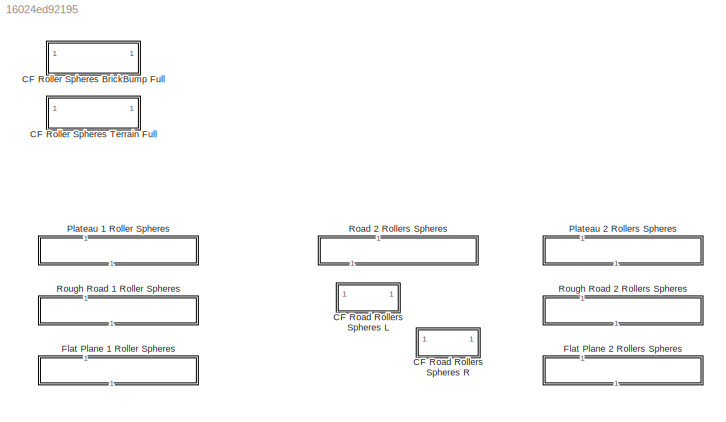
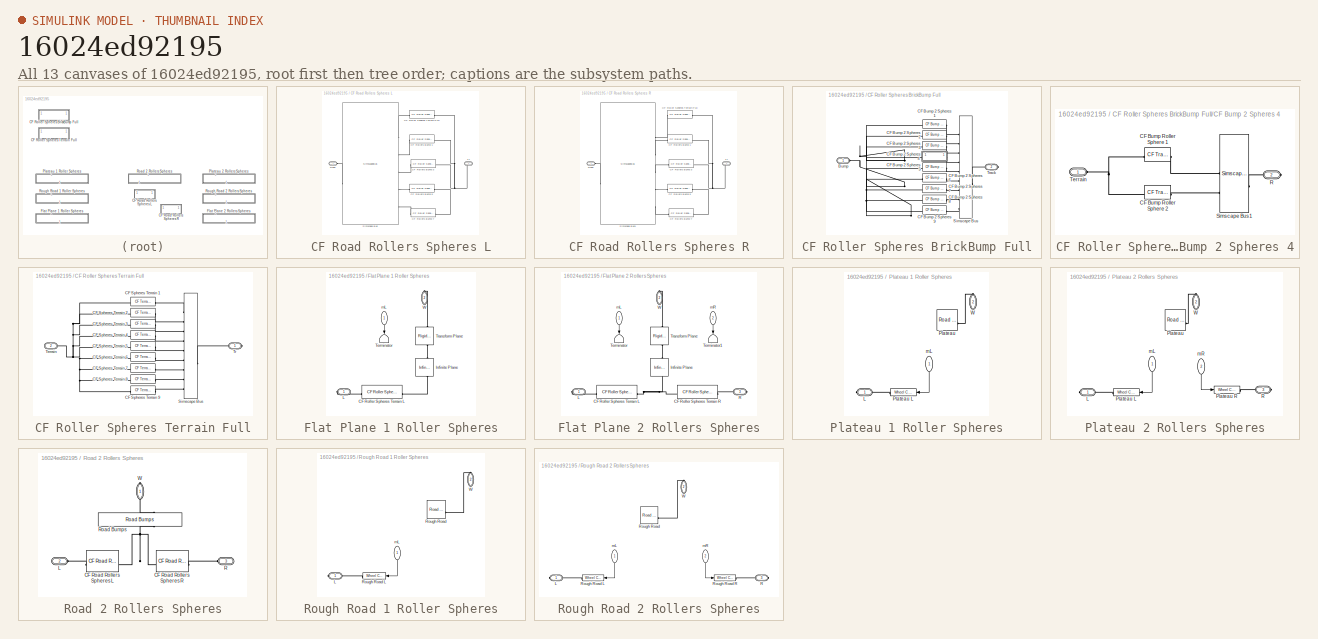
[diagram: thumbnail index - all 13 canvases of the model, root first then tree order]
MODEL slx_16024ed92195
KIND library
CONFIG SolverName = VariableStepAuto
BLOCK [SubSystem] CF Road Rollers Spheres L
BLOCK [Reference] CF Road Rollers Spheres L/CF Roller Spheres Terrain Full  REF=$bdroot/CF Roller Spheres Terrain Full
  SourceBlock = $bdroot/CF Roller Spheres Terrain Full
  SourceType = Contact Forces, All Rollers (Spheres) and Terrain)
BLOCK [Reference] CF Road Rollers Spheres L/CF Rollers Bump 1  REF=$bdroot/CF Roller Spheres BrickBump Full
  SourceBlock = $bdroot/CF Roller Spheres BrickBump Full
  SourceType = Contact Forces, Full Track to Bump
BLOCK [Reference] CF Road Rollers Spheres L/CF Rollers Bump 3  REF=$bdroot/CF Roller Spheres BrickBump Full
  SourceBlock = $bdroot/CF Roller Spheres BrickBump Full
  SourceType = Contact Forces, Full Track to Bump
BLOCK [Reference] CF Road Rollers Spheres L/CF Rollers Bump 5  REF=$bdroot/CF Roller Spheres BrickBump Full
  SourceBlock = $bdroot/CF Roller Spheres BrickBump Full
  SourceType = Contact Forces, Full Track to Bump
BLOCK [Reference] CF Road Rollers Spheres L/CF Rollers Bump 7  REF=$bdroot/CF Roller Spheres BrickBump Full
  SourceBlock = $bdroot/CF Roller Spheres BrickBump Full
  SourceType = Contact Forces, Full Track to Bump
BLOCK [PMIOPort] CF Road Rollers Spheres L/Road
  Side = Left
BLOCK [SimscapeBus] CF Road Rollers Spheres L/Simscape Bus
  ConnectionType = Bus: CBO_Road8
  HierarchyStrings = Road;B1;B3;B5;B7
  NameLocation = top
BLOCK [PMIOPort] CF Road Rollers Spheres L/Tr
  Port = 2
  Side = Right
BLOCK [SubSystem] CF Road Rollers Spheres R
BLOCK [Reference] CF Road Rollers Spheres R/CF Roller Spheres Terrain Full  REF=$bdroot/CF Roller Spheres Terrain Full
  SourceBlock = $bdroot/CF Roller Spheres Terrain Full
  SourceType = Contact Forces, All Rollers (Spheres) and Terrain)
BLOCK [Reference] CF Road Rollers Spheres R/CF Rollers Bump 1  REF=$bdroot/CF Roller Spheres BrickBump Full
  SourceBlock = $bdroot/CF Roller Spheres BrickBump Full
  SourceType = Contact Forces, Full Track to Bump
BLOCK [Reference] CF Road Rollers Spheres R/CF Rollers Bump 3  REF=$bdroot/CF Roller Spheres BrickBump Full
  SourceBlock = $bdroot/CF Roller Spheres BrickBump Full
  SourceType = Contact Forces, Full Track to Bump
BLOCK [Reference] CF Road Rollers Spheres R/CF Rollers Bump 5  REF=$bdroot/CF Roller Spheres BrickBump Full
  SourceBlock = $bdroot/CF Roller Spheres BrickBump Full
  SourceType = Contact Forces, Full Track to Bump
BLOCK [Reference] CF Road Rollers Spheres R/CF Rollers Bump 7  REF=$bdroot/CF Roller Spheres BrickBump Full
  SourceBlock = $bdroot/CF Roller Spheres BrickBump Full
  SourceType = Contact Forces, Full Track to Bump
BLOCK [PMIOPort] CF Road Rollers Spheres R/Road
  Side = Left
BLOCK [SimscapeBus] CF Road Rollers Spheres R/Simscape Bus1
  ConnectionType = Bus: CBO_Road8
  HierarchyStrings = Road;B2;B4;B6;B8
  NameLocation = top
BLOCK [PMIOPort] CF Road Rollers Spheres R/Tr
  Port = 2
  Side = Right
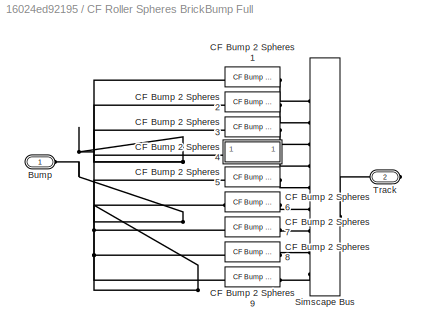
BLOCK [SubSystem] CF Roller Spheres BrickBump Full
BLOCK [PMIOPort] CF Roller Spheres BrickBump Full/Bump
  Side = Left
BLOCK [Reference] CF Roller Spheres BrickBump Full/CF Bump 2 Spheres 1  REF=sm_rollerV_lib_terrain_contact_belem/CF Bump 2 Spheres
  NameLocation = left
  SourceBlock = sm_rollerV_lib_terrain_contact_belem/CF Bump 2 Spheres
  SourceType = Contact Force, Two Spheres to Bump
BLOCK [Reference] CF Roller Spheres BrickBump Full/CF Bump 2 Spheres 2  REF=sm_rollerV_lib_terrain_contact_belem/CF Bump 2 Spheres
  NameLocation = left
  SourceBlock = sm_rollerV_lib_terrain_contact_belem/CF Bump 2 Spheres
  SourceType = Contact Force, Two Spheres to Bump
BLOCK [Reference] CF Roller Spheres BrickBump Full/CF Bump 2 Spheres 3  REF=sm_rollerV_lib_terrain_contact_belem/CF Bump 2 Spheres
  NameLocation = left
  SourceBlock = sm_rollerV_lib_terrain_contact_belem/CF Bump 2 Spheres
  SourceType = Contact Force, Two Spheres to Bump
BLOCK [SubSystem] CF Roller Spheres BrickBump Full/CF Bump 2 Spheres 4
  NameLocation = left
BLOCK [Reference] CF Roller Spheres BrickBump Full/CF Bump 2 Spheres 4/CF Bump Roller Sphere 1   REF=sm_trackV_lib_terrain_contact_elem/CF Track BrickBump
  SourceBlock = sm_trackV_lib_terrain_contact_elem/CF Track BrickBump
  SourceType = Contact Force, Track Segment to Bump
BLOCK [Reference] CF Roller Spheres BrickBump Full/CF Bump 2 Spheres 4/CF Bump Roller Sphere 2  REF=sm_trackV_lib_terrain_contact_elem/CF Track BrickBump
  SourceBlock = sm_trackV_lib_terrain_contact_elem/CF Track BrickBump
  SourceType = Contact Force, Track Segment to Bump
BLOCK [PMIOPort] CF Roller Spheres BrickBump Full/CF Bump 2 Spheres 4/R
  Port = 2
  Side = Right
BLOCK [SimscapeBus] CF Roller Spheres BrickBump Full/CF Bump 2 Spheres 4/Simscape Bus1
  HierarchyStrings = S1;S2
BLOCK [PMIOPort] CF Roller Spheres BrickBump Full/CF Bump 2 Spheres 4/Terrain
  Side = Left
BLOCK [Reference] CF Roller Spheres BrickBump Full/CF Bump 2 Spheres 5  REF=$bdroot/CF Roller Spheres BrickBump Full/CF Bump 2 Spheres 4
  NameLocation = left
  SourceBlock = $bdroot/CF Roller Spheres BrickBump Full/CF Bump 2 Spheres 4
BLOCK [Reference] CF Roller Spheres BrickBump Full/CF Bump 2 Spheres 6  REF=$bdroot/CF Roller Spheres BrickBump Full/CF Bump 2 Spheres 4
  NameLocation = left
  SourceBlock = $bdroot/CF Roller Spheres BrickBump Full/CF Bump 2 Spheres 4
BLOCK [Reference] CF Roller Spheres BrickBump Full/CF Bump 2 Spheres 7  REF=$bdroot/CF Roller Spheres BrickBump Full/CF Bump 2 Spheres 4
  NameLocation = left
  SourceBlock = $bdroot/CF Roller Spheres BrickBump Full/CF Bump 2 Spheres 4
BLOCK [Reference] CF Roller Spheres BrickBump Full/CF Bump 2 Spheres 8  REF=$bdroot/CF Roller Spheres BrickBump Full/CF Bump 2 Spheres 4
  NameLocation = left
  SourceBlock = $bdroot/CF Roller Spheres BrickBump Full/CF Bump 2 Spheres 4
BLOCK [Reference] CF Roller Spheres BrickBump Full/CF Bump 2 Spheres 9  REF=$bdroot/CF Roller Spheres BrickBump Full/CF Bump 2 Spheres 4
  NameLocation = left
  SourceBlock = $bdroot/CF Roller Spheres BrickBump Full/CF Bump 2 Spheres 4
BLOCK [SimscapeBus] CF Roller Spheres BrickBump Full/Simscape Bus
  HierarchyStrings = L1;L2;L3;L4;L5;L6;L7;L8;L9
BLOCK [PMIOPort] CF Roller Spheres BrickBump Full/Track
  NameLocation = top
  Port = 2
  Side = Right
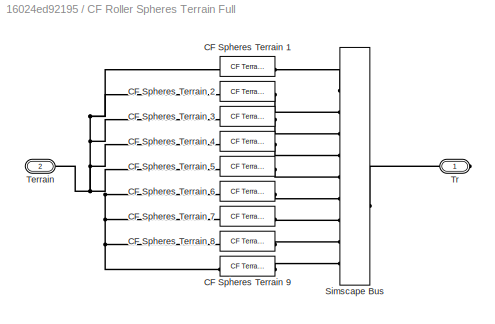
BLOCK [SubSystem] CF Roller Spheres Terrain Full
BLOCK [Reference] CF Roller Spheres Terrain Full/CF Spheres Terrain 1  REF=sm_rollerV_lib_terrain_contact_belem/CF Terrain 2 Spheres
  NameLocation = left
  SourceBlock = sm_rollerV_lib_terrain_contact_belem/CF Terrain 2 Spheres
  SourceType = Contact Force, Two Spheres to Ground
BLOCK [Reference] CF Roller Spheres Terrain Full/CF Spheres Terrain 2  REF=sm_rollerV_lib_terrain_contact_belem/CF Terrain 2 Spheres
  NameLocation = left
  SourceBlock = sm_rollerV_lib_terrain_contact_belem/CF Terrain 2 Spheres
  SourceType = Contact Force, Two Spheres to Ground
BLOCK [Reference] CF Roller Spheres Terrain Full/CF Spheres Terrain 3  REF=sm_rollerV_lib_terrain_contact_belem/CF Terrain 2 Spheres
  NameLocation = left
  SourceBlock = sm_rollerV_lib_terrain_contact_belem/CF Terrain 2 Spheres
  SourceType = Contact Force, Two Spheres to Ground
BLOCK [Reference] CF Roller Spheres Terrain Full/CF Spheres Terrain 4  REF=sm_rollerV_lib_terrain_contact_belem/CF Terrain 2 Spheres
  NameLocation = left
  SourceBlock = sm_rollerV_lib_terrain_contact_belem/CF Terrain 2 Spheres
  SourceType = Contact Force, Two Spheres to Ground
BLOCK [Reference] CF Roller Spheres Terrain Full/CF Spheres Terrain 5  REF=sm_rollerV_lib_terrain_contact_belem/CF Terrain 2 Spheres
  NameLocation = left
  SourceBlock = sm_rollerV_lib_terrain_contact_belem/CF Terrain 2 Spheres
  SourceType = Contact Force, Two Spheres to Ground
BLOCK [Reference] CF Roller Spheres Terrain Full/CF Spheres Terrain 6  REF=sm_rollerV_lib_terrain_contact_belem/CF Terrain 2 Spheres
  NameLocation = left
  SourceBlock = sm_rollerV_lib_terrain_contact_belem/CF Terrain 2 Spheres
  SourceType = Contact Force, Two Spheres to Ground
BLOCK [Reference] CF Roller Spheres Terrain Full/CF Spheres Terrain 7  REF=sm_rollerV_lib_terrain_contact_belem/CF Terrain 2 Spheres
  NameLocation = left
  SourceBlock = sm_rollerV_lib_terrain_contact_belem/CF Terrain 2 Spheres
  SourceType = Contact Force, Two Spheres to Ground
BLOCK [Reference] CF Roller Spheres Terrain Full/CF Spheres Terrain 8  REF=sm_rollerV_lib_terrain_contact_belem/CF Terrain 2 Spheres
  NameLocation = left
  SourceBlock = sm_rollerV_lib_terrain_contact_belem/CF Terrain 2 Spheres
  SourceType = Contact Force, Two Spheres to Ground
BLOCK [Reference] CF Roller Spheres Terrain Full/CF Spheres Terrain 9  REF=sm_rollerV_lib_terrain_contact_belem/CF Terrain 2 Spheres
  NameLocation = left
  SourceBlock = sm_rollerV_lib_terrain_contact_belem/CF Terrain 2 Spheres
  SourceType = Contact Force, Two Spheres to Ground
BLOCK [SimscapeBus] CF Roller Spheres Terrain Full/Simscape Bus
  HierarchyStrings = L1;L2;L3;L4;L5;L6;L7;L8;L9
BLOCK [PMIOPort] CF Roller Spheres Terrain Full/Terrain
  Port = 2
  Side = Left
BLOCK [PMIOPort] CF Roller Spheres Terrain Full/Tr
  Side = Right
BLOCK [SubSystem] Flat Plane 1 Roller Spheres
  NameLocation = right
BLOCK [Reference] Flat Plane 1 Roller Spheres/CF Roller Spheres Terrain L  REF=$bdroot/CF Roller Spheres Terrain Full
  SourceBlock = $bdroot/CF Roller Spheres Terrain Full
  SourceType = Contact Forces, All Rollers (Spheres) and Terrain)
BLOCK [Reference] Flat Plane 1 Roller Spheres/Infinite Plane  REF=sm_lib/Curves and Surfaces/Infinite Plane
  NameLocation = right
  SourceBlock = sm_lib/Curves and Surfaces/Infinite Plane
  SourceType = Infinite Plane
BLOCK [PMIOPort] Flat Plane 1 Roller Spheres/L
  Side = Right
BLOCK [Terminator] Flat Plane 1 Roller Spheres/Terminator
  NameLocation = left
BLOCK [Reference] Flat Plane 1 Roller Spheres/Transform Plane  REF=sm_lib/Frames and
Transforms/Rigid
Transform
  NameLocation = right
  SourceBlock = sm_lib/Frames and\nTransforms/Rigid\nTransform
  SourceType = Rigid\nTransform
BLOCK [PMIOPort] Flat Plane 1 Roller Spheres/W
  NameLocation = left
  Port = 2
  Side = Right
BLOCK [Inport] Flat Plane 1 Roller Spheres/mL
  NameLocation = left
BLOCK [SubSystem] Flat Plane 2 Rollers Spheres
  NameLocation = right
BLOCK [Reference] Flat Plane 2 Rollers Spheres/CF Roller Spheres Terrain L  REF=$bdroot/CF Roller Spheres Terrain Full
  SourceBlock = $bdroot/CF Roller Spheres Terrain Full
  SourceType = Contact Forces, All Rollers (Spheres) and Terrain)
BLOCK [Reference] Flat Plane 2 Rollers Spheres/CF Roller Spheres Terrain R  REF=$bdroot/CF Roller Spheres Terrain Full
  SourceBlock = $bdroot/CF Roller Spheres Terrain Full
  SourceType = Contact Forces, All Rollers (Spheres) and Terrain)
BLOCK [Reference] Flat Plane 2 Rollers Spheres/Infinite Plane  REF=sm_lib/Curves and Surfaces/Infinite Plane
  NameLocation = right
  SourceBlock = sm_lib/Curves and Surfaces/Infinite Plane
  SourceType = Infinite Plane
BLOCK [PMIOPort] Flat Plane 2 Rollers Spheres/L
  Side = Right
BLOCK [PMIOPort] Flat Plane 2 Rollers Spheres/R
  Port = 3
  Side = Right
BLOCK [Terminator] Flat Plane 2 Rollers Spheres/Terminator
  NameLocation = left
BLOCK [Terminator] Flat Plane 2 Rollers Spheres/Terminator1
  NameLocation = left
BLOCK [Reference] Flat Plane 2 Rollers Spheres/Transform Plane  REF=sm_lib/Frames and
Transforms/Rigid
Transform
  NameLocation = right
  SourceBlock = sm_lib/Frames and\nTransforms/Rigid\nTransform
  SourceType = Rigid\nTransform
BLOCK [PMIOPort] Flat Plane 2 Rollers Spheres/W
  NameLocation = left
  Port = 2
  Side = Right
BLOCK [Inport] Flat Plane 2 Rollers Spheres/mL
  NameLocation = left
BLOCK [Inport] Flat Plane 2 Rollers Spheres/mR
  NameLocation = left
  Port = 2
BLOCK [SubSystem] Plateau 1 Roller Spheres
  NameLocation = right
BLOCK [PMIOPort] Plateau 1 Roller Spheres/L
  Side = Right
BLOCK [Reference] Plateau 1 Roller Spheres/Plateau  REF=sm_excv_scene_lib/Road Profile and Grid  (lib defined in slx_1cf3237a0358)
  LibrarySourceBlock = sm_excv_uneven_road_lib/Plateau
  SourceBlock = sm_excv_scene_lib/Road Profile and Grid
  SourceType = Display Wheel Paths and Grid
BLOCK [Reference] Plateau 1 Roller Spheres/Plateau L  REF=sm_rollerV_lib_terrain_contact_belem/Wheel Center to Patch 2x
Roller Set
  LibrarySourceBlock = sm_excv_uneven_road_lib/Rollers Rough Road1
  SourceBlock = sm_rollerV_lib_terrain_contact_belem/Wheel Center to Patch 2x\nRoller Set
  SourceType = Wheel Center to Patch Height and Pitch, All Rollers
BLOCK [PMIOPort] Plateau 1 Roller Spheres/W
  NameLocation = left
  Port = 2
  Side = Right
BLOCK [Inport] Plateau 1 Roller Spheres/mL
  NameLocation = left
BLOCK [SubSystem] Plateau 2 Rollers Spheres
  NameLocation = right
BLOCK [PMIOPort] Plateau 2 Rollers Spheres/L
  Side = Right
BLOCK [Reference] Plateau 2 Rollers Spheres/Plateau  REF=sm_excv_scene_lib/Road Profile and Grid  (lib defined in slx_1cf3237a0358)
  LibrarySourceBlock = sm_excv_uneven_road_lib/Plateau
  SourceBlock = sm_excv_scene_lib/Road Profile and Grid
  SourceType = Display Wheel Paths and Grid
BLOCK [Reference] Plateau 2 Rollers Spheres/Plateau L  REF=sm_rollerV_lib_terrain_contact_belem/Wheel Center to Patch 2x
Roller Set
  LibrarySourceBlock = sm_excv_uneven_road_lib/Rollers Rough Road1
  SourceBlock = sm_rollerV_lib_terrain_contact_belem/Wheel Center to Patch 2x\nRoller Set
  SourceType = Wheel Center to Patch Height and Pitch, All Rollers
BLOCK [Reference] Plateau 2 Rollers Spheres/Plateau R  REF=sm_rollerV_lib_terrain_contact_belem/Wheel Center to Patch 2x
Roller Set
  LibrarySourceBlock = sm_excv_uneven_road_lib/Rollers Rough Road1
  SourceBlock = sm_rollerV_lib_terrain_contact_belem/Wheel Center to Patch 2x\nRoller Set
  SourceType = Wheel Center to Patch Height and Pitch, All Rollers
BLOCK [PMIOPort] Plateau 2 Rollers Spheres/R
  Port = 3
  Side = Right
BLOCK [PMIOPort] Plateau 2 Rollers Spheres/W
  NameLocation = left
  Port = 2
  Side = Right
BLOCK [Inport] Plateau 2 Rollers Spheres/mL
  NameLocation = left
BLOCK [Inport] Plateau 2 Rollers Spheres/mR
  NameLocation = left
  Port = 2
BLOCK [SubSystem] Road 2 Rollers Spheres
  NameLocation = right
BLOCK [Reference] Road 2 Rollers Spheres/CF Road Rollers Spheres L  REF=$bdroot/CF Road Rollers Spheres L
  SourceBlock = $bdroot/CF Road Rollers Spheres L
  SourceType = SubSystem
BLOCK [Reference] Road 2 Rollers Spheres/CF Road Rollers Spheres R  REF=$bdroot/CF Road Rollers Spheres R
  SourceBlock = $bdroot/CF Road Rollers Spheres R
  SourceType = SubSystem
BLOCK [PMIOPort] Road 2 Rollers Spheres/L
  Port = 2
  Side = Left
BLOCK [PMIOPort] Road 2 Rollers Spheres/R
  Port = 3
  Side = Left
BLOCK [Reference] Road 2 Rollers Spheres/Road Bumps  REF=sm_excv_scene_lib/Road  (lib defined in slx_1cf3237a0358)
Bumps
  NameLocation = right
  SourceBlock = sm_excv_scene_lib/Road\nBumps
BLOCK [PMIOPort] Road 2 Rollers Spheres/W
  NameLocation = right
  Side = Right
BLOCK [SubSystem] Rough Road 1 Roller Spheres
  NameLocation = right
BLOCK [PMIOPort] Rough Road 1 Roller Spheres/L
  Side = Right
BLOCK [Reference] Rough Road 1 Roller Spheres/Rough Road  REF=sm_excv_scene_lib/Road Profile and Grid  (lib defined in slx_1cf3237a0358)
  SourceBlock = sm_excv_scene_lib/Road Profile and Grid
  SourceType = Display Wheel Paths and Grid
BLOCK [Reference] Rough Road 1 Roller Spheres/Rough Road L  REF=sm_rollerV_lib_terrain_contact_belem/Wheel Center to Patch 2x
Roller Set
  LibrarySourceBlock = sm_excv_uneven_road_lib/Rollers Rough Road1
  SourceBlock = sm_rollerV_lib_terrain_contact_belem/Wheel Center to Patch 2x\nRoller Set
  SourceType = Wheel Center to Patch Height and Pitch, All Rollers
BLOCK [PMIOPort] Rough Road 1 Roller Spheres/W
  NameLocation = left
  Port = 2
  Side = Right
BLOCK [Inport] Rough Road 1 Roller Spheres/mL
  NameLocation = left
BLOCK [SubSystem] Rough Road 2 Rollers Spheres
  NameLocation = right
BLOCK [PMIOPort] Rough Road 2 Rollers Spheres/L
  Side = Right
BLOCK [PMIOPort] Rough Road 2 Rollers Spheres/R
  Port = 3
  Side = Right
BLOCK [Reference] Rough Road 2 Rollers Spheres/Rough Road  REF=sm_excv_scene_lib/Road Profile and Grid  (lib defined in slx_1cf3237a0358)
  SourceBlock = sm_excv_scene_lib/Road Profile and Grid
  SourceType = Display Wheel Paths and Grid
BLOCK [Reference] Rough Road 2 Rollers Spheres/Rough Road L  REF=sm_rollerV_lib_terrain_contact_belem/Wheel Center to Patch 2x
Roller Set
  LibrarySourceBlock = sm_excv_uneven_road_lib/Rollers Rough Road1
  SourceBlock = sm_rollerV_lib_terrain_contact_belem/Wheel Center to Patch 2x\nRoller Set
  SourceType = Wheel Center to Patch Height and Pitch, All Rollers
BLOCK [Reference] Rough Road 2 Rollers Spheres/Rough Road R  REF=sm_rollerV_lib_terrain_contact_belem/Wheel Center to Patch 2x
Roller Set
  LibrarySourceBlock = sm_excv_uneven_road_lib/Rollers Rough Road1
  SourceBlock = sm_rollerV_lib_terrain_contact_belem/Wheel Center to Patch 2x\nRoller Set
  SourceType = Wheel Center to Patch Height and Pitch, All Rollers
BLOCK [PMIOPort] Rough Road 2 Rollers Spheres/W
  NameLocation = left
  Port = 2
  Side = Right
BLOCK [Inport] Rough Road 2 Rollers Spheres/mL
  NameLocation = left
BLOCK [Inport] Rough Road 2 Rollers Spheres/mR
  NameLocation = left
  Port = 2
LINE Flat Plane 1 Roller Spheres/mL:1 -> Flat Plane 1 Roller Spheres/Terminator:1
LINE Flat Plane 2 Rollers Spheres/mL:1 -> Flat Plane 2 Rollers Spheres/Terminator:1
LINE Flat Plane 2 Rollers Spheres/mR:1 -> Flat Plane 2 Rollers Spheres/Terminator1:1
LINE Plateau 1 Roller Spheres/mL:1 -> Plateau 1 Roller Spheres/Plateau L:1
LINE Plateau 2 Rollers Spheres/mL:1 -> Plateau 2 Rollers Spheres/Plateau L:1
LINE Plateau 2 Rollers Spheres/mR:1 -> Plateau 2 Rollers Spheres/Plateau R:1
LINE Rough Road 1 Roller Spheres/mL:1 -> Rough Road 1 Roller Spheres/Rough Road L:1
LINE Rough Road 2 Rollers Spheres/mL:1 -> Rough Road 2 Rollers Spheres/Rough Road L:1
LINE Rough Road 2 Rollers Spheres/mR:1 -> Rough Road 2 Rollers Spheres/Rough Road R:1
PLINE CF Road Rollers Spheres L/CF Roller Spheres Terrain Full:LConn1 -- CF Road Rollers Spheres L/Simscape Bus:LConn1
PNET net1: CF Road Rollers Spheres L/CF Roller Spheres Terrain Full:RConn1 -- CF Road Rollers Spheres L/CF Rollers Bump 1:RConn1 -- CF Road Rollers Spheres L/CF Rollers Bump 3:RConn1 -- CF Road Rollers Spheres L/CF Rollers Bump 5:RConn1 -- CF Road Rollers Spheres L/CF Rollers Bump 7:RConn1 -- CF Road Rollers Spheres L/Tr:RConn1
PLINE CF Road Rollers Spheres L/CF Rollers Bump 1:LConn1 -- CF Road Rollers Spheres L/Simscape Bus:LConn2
PLINE CF Road Rollers Spheres L/CF Rollers Bump 3:LConn1 -- CF Road Rollers Spheres L/Simscape Bus:LConn3
PLINE CF Road Rollers Spheres L/CF Rollers Bump 5:LConn1 -- CF Road Rollers Spheres L/Simscape Bus:LConn4
PLINE CF Road Rollers Spheres L/CF Rollers Bump 7:LConn1 -- CF Road Rollers Spheres L/Simscape Bus:LConn5
PLINE CF Road Rollers Spheres L/Road:RConn1 -- CF Road Rollers Spheres L/Simscape Bus:RConn1
PLINE CF Road Rollers Spheres R/CF Roller Spheres Terrain Full:LConn1 -- CF Road Rollers Spheres R/Simscape Bus1:LConn1
PNET net2: CF Road Rollers Spheres R/CF Roller Spheres Terrain Full:RConn1 -- CF Road Rollers Spheres R/CF Rollers Bump 1:RConn1 -- CF Road Rollers Spheres R/CF Rollers Bump 3:RConn1 -- CF Road Rollers Spheres R/CF Rollers Bump 5:RConn1 -- CF Road Rollers Spheres R/CF Rollers Bump 7:RConn1 -- CF Road Rollers Spheres R/Tr:RConn1
PLINE CF Road Rollers Spheres R/CF Rollers Bump 1:LConn1 -- CF Road Rollers Spheres R/Simscape Bus1:LConn2
PLINE CF Road Rollers Spheres R/CF Rollers Bump 3:LConn1 -- CF Road Rollers Spheres R/Simscape Bus1:LConn3
PLINE CF Road Rollers Spheres R/CF Rollers Bump 5:LConn1 -- CF Road Rollers Spheres R/Simscape Bus1:LConn4
PLINE CF Road Rollers Spheres R/CF Rollers Bump 7:LConn1 -- CF Road Rollers Spheres R/Simscape Bus1:LConn5
PLINE CF Road Rollers Spheres R/Road:RConn1 -- CF Road Rollers Spheres R/Simscape Bus1:RConn1
PNET net3: CF Roller Spheres BrickBump Full/Bump:RConn1 -- CF Roller Spheres BrickBump Full/CF Bump 2 Spheres 1:LConn1 -- CF Roller Spheres BrickBump Full/CF Bump 2 Spheres 2:LConn1 -- CF Roller Spheres BrickBump Full/CF Bump 2 Spheres 3:LConn1 -- CF Roller Spheres BrickBump Full/CF Bump 2 Spheres 4:LConn1 -- CF Roller Spheres BrickBump Full/CF Bump 2 Spheres 5:LConn1 -- CF Roller Spheres BrickBump Full/CF Bump 2 Spheres 6:LConn1 -- CF Roller Spheres BrickBump Full/CF Bump 2 Spheres 7:LConn1 -- CF Roller Spheres BrickBump Full/CF Bump 2 Spheres 8:LConn1 -- CF Roller Spheres BrickBump Full/CF Bump 2 Spheres 9:LConn1
PLINE CF Roller Spheres BrickBump Full/CF Bump 2 Spheres 1:RConn1 -- CF Roller Spheres BrickBump Full/Simscape Bus:LConn1
PLINE CF Roller Spheres BrickBump Full/CF Bump 2 Spheres 2:RConn1 -- CF Roller Spheres BrickBump Full/Simscape Bus:LConn2
PLINE CF Roller Spheres BrickBump Full/CF Bump 2 Spheres 3:RConn1 -- CF Roller Spheres BrickBump Full/Simscape Bus:LConn3
PNET net4: CF Roller Spheres BrickBump Full/CF Bump 2 Spheres 4/CF Bump Roller Sphere 1 :LConn1 -- CF Roller Spheres BrickBump Full/CF Bump 2 Spheres 4/CF Bump Roller Sphere 2:LConn1 -- CF Roller Spheres BrickBump Full/CF Bump 2 Spheres 4/Terrain:RConn1
PLINE CF Roller Spheres BrickBump Full/CF Bump 2 Spheres 4/CF Bump Roller Sphere 1 :RConn1 -- CF Roller Spheres BrickBump Full/CF Bump 2 Spheres 4/Simscape Bus1:LConn1
PLINE CF Roller Spheres BrickBump Full/CF Bump 2 Spheres 4/CF Bump Roller Sphere 2:RConn1 -- CF Roller Spheres BrickBump Full/CF Bump 2 Spheres 4/Simscape Bus1:LConn2
PLINE CF Roller Spheres BrickBump Full/CF Bump 2 Spheres 4/R:RConn1 -- CF Roller Spheres BrickBump Full/CF Bump 2 Spheres 4/Simscape Bus1:RConn1
PLINE CF Roller Spheres BrickBump Full/CF Bump 2 Spheres 4:RConn1 -- CF Roller Spheres BrickBump Full/Simscape Bus:LConn4
PLINE CF Roller Spheres BrickBump Full/CF Bump 2 Spheres 5:RConn1 -- CF Roller Spheres BrickBump Full/Simscape Bus:LConn5
PLINE CF Roller Spheres BrickBump Full/CF Bump 2 Spheres 6:RConn1 -- CF Roller Spheres BrickBump Full/Simscape Bus:LConn6
PLINE CF Roller Spheres BrickBump Full/CF Bump 2 Spheres 7:RConn1 -- CF Roller Spheres BrickBump Full/Simscape Bus:LConn7
PLINE CF Roller Spheres BrickBump Full/CF Bump 2 Spheres 8:RConn1 -- CF Roller Spheres BrickBump Full/Simscape Bus:LConn8
PLINE CF Roller Spheres BrickBump Full/CF Bump 2 Spheres 9:RConn1 -- CF Roller Spheres BrickBump Full/Simscape Bus:LConn9
PLINE CF Roller Spheres BrickBump Full/Simscape Bus:RConn1 -- CF Roller Spheres BrickBump Full/Track:RConn1
PNET net5: CF Roller Spheres Terrain Full/CF Spheres Terrain 1:LConn1 -- CF Roller Spheres Terrain Full/CF Spheres Terrain 2:LConn1 -- CF Roller Spheres Terrain Full/CF Spheres Terrain 3:LConn1 -- CF Roller Spheres Terrain Full/CF Spheres Terrain 4:LConn1 -- CF Roller Spheres Terrain Full/CF Spheres Terrain 5:LConn1 -- CF Roller Spheres Terrain Full/CF Spheres Terrain 6:LConn1 -- CF Roller Spheres Terrain Full/CF Spheres Terrain 7:LConn1 -- CF Roller Spheres Terrain Full/CF Spheres Terrain 8:LConn1 -- CF Roller Spheres Terrain Full/CF Spheres Terrain 9:LConn1 -- CF Roller Spheres Terrain Full/Terrain:RConn1
PLINE CF Roller Spheres Terrain Full/CF Spheres Terrain 1:RConn1 -- CF Roller Spheres Terrain Full/Simscape Bus:LConn1
PLINE CF Roller Spheres Terrain Full/CF Spheres Terrain 2:RConn1 -- CF Roller Spheres Terrain Full/Simscape Bus:LConn2
PLINE CF Roller Spheres Terrain Full/CF Spheres Terrain 3:RConn1 -- CF Roller Spheres Terrain Full/Simscape Bus:LConn3
PLINE CF Roller Spheres Terrain Full/CF Spheres Terrain 4:RConn1 -- CF Roller Spheres Terrain Full/Simscape Bus:LConn4
PLINE CF Roller Spheres Terrain Full/CF Spheres Terrain 5:RConn1 -- CF Roller Spheres Terrain Full/Simscape Bus:LConn5
PLINE CF Roller Spheres Terrain Full/CF Spheres Terrain 6:RConn1 -- CF Roller Spheres Terrain Full/Simscape Bus:LConn6
PLINE CF Roller Spheres Terrain Full/CF Spheres Terrain 7:RConn1 -- CF Roller Spheres Terrain Full/Simscape Bus:LConn7
PLINE CF Roller Spheres Terrain Full/CF Spheres Terrain 8:RConn1 -- CF Roller Spheres Terrain Full/Simscape Bus:LConn8
PLINE CF Roller Spheres Terrain Full/CF Spheres Terrain 9:RConn1 -- CF Roller Spheres Terrain Full/Simscape Bus:LConn9
PLINE CF Roller Spheres Terrain Full/Simscape Bus:RConn1 -- CF Roller Spheres Terrain Full/Tr:RConn1
PLINE Flat Plane 1 Roller Spheres/CF Roller Spheres Terrain L:LConn1 -- Flat Plane 1 Roller Spheres/Infinite Plane:RConn1
PLINE Flat Plane 1 Roller Spheres/CF Roller Spheres Terrain L:RConn1 -- Flat Plane 1 Roller Spheres/L:RConn1
PLINE Flat Plane 1 Roller Spheres/Infinite Plane:LConn1 -- Flat Plane 1 Roller Spheres/Transform Plane:RConn1
PLINE Flat Plane 1 Roller Spheres/Transform Plane:LConn1 -- Flat Plane 1 Roller Spheres/W:RConn1
PNET net6: Flat Plane 2 Rollers Spheres/CF Roller Spheres Terrain L:LConn1 -- Flat Plane 2 Rollers Spheres/CF Roller Spheres Terrain R:LConn1 -- Flat Plane 2 Rollers Spheres/Infinite Plane:RConn1
PLINE Flat Plane 2 Rollers Spheres/CF Roller Spheres Terrain L:RConn1 -- Flat Plane 2 Rollers Spheres/L:RConn1
PLINE Flat Plane 2 Rollers Spheres/CF Roller Spheres Terrain R:RConn1 -- Flat Plane 2 Rollers Spheres/R:RConn1
PLINE Flat Plane 2 Rollers Spheres/Infinite Plane:LConn1 -- Flat Plane 2 Rollers Spheres/Transform Plane:RConn1
PLINE Flat Plane 2 Rollers Spheres/Transform Plane:LConn1 -- Flat Plane 2 Rollers Spheres/W:RConn1
PLINE Plateau 1 Roller Spheres/L:RConn1 -- Plateau 1 Roller Spheres/Plateau L:RConn1
PLINE Plateau 1 Roller Spheres/Plateau:RConn1 -- Plateau 1 Roller Spheres/W:RConn1
PLINE Plateau 2 Rollers Spheres/L:RConn1 -- Plateau 2 Rollers Spheres/Plateau L:RConn1
PLINE Plateau 2 Rollers Spheres/Plateau R:RConn1 -- Plateau 2 Rollers Spheres/R:RConn1
PLINE Plateau 2 Rollers Spheres/Plateau:RConn1 -- Plateau 2 Rollers Spheres/W:RConn1
PNET net7: Road 2 Rollers Spheres/CF Road Rollers Spheres L:LConn1 -- Road 2 Rollers Spheres/CF Road Rollers Spheres R:LConn1 -- Road 2 Rollers Spheres/Road Bumps:LConn1
PLINE Road 2 Rollers Spheres/CF Road Rollers Spheres L:RConn1 -- Road 2 Rollers Spheres/L:RConn1
PLINE Road 2 Rollers Spheres/CF Road Rollers Spheres R:RConn1 -- Road 2 Rollers Spheres/R:RConn1
PLINE Road 2 Rollers Spheres/Road Bumps:RConn1 -- Road 2 Rollers Spheres/W:RConn1
PLINE Rough Road 1 Roller Spheres/L:RConn1 -- Rough Road 1 Roller Spheres/Rough Road L:RConn1
PLINE Rough Road 1 Roller Spheres/Rough Road:RConn1 -- Rough Road 1 Roller Spheres/W:RConn1
PLINE Rough Road 2 Rollers Spheres/L:RConn1 -- Rough Road 2 Rollers Spheres/Rough Road L:RConn1
PLINE Rough Road 2 Rollers Spheres/R:RConn1 -- Rough Road 2 Rollers Spheres/Rough Road R:RConn1
PLINE Rough Road 2 Rollers Spheres/Rough Road:RConn1 -- Rough Road 2 Rollers Spheres/W:RConn1
note: PNET lines group multi-terminal physical nets as a canonical sorted terminal list (undirected conserving connections); 2-terminal nets keep the pairwise PLINE form
